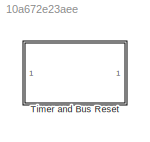
MODEL slx_10a672e23aee
KIND library
CONFIG AbsTol = auto
CONFIG EnableMultiTasking = off
CONFIG FixedStep = auto
CONFIG MaxStep = auto
CONFIG MinStep = auto
CONFIG RelTol = 1e-3
CONFIG SampleTimeConstraint = Unconstrained
CONFIG Solver = VariableStepAuto
CONFIG SolverName = VariableStepAuto
CONFIG StartTime = 0.0
CONFIG StopTime = 10.0
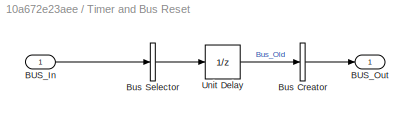
BLOCK [SubSystem] Timer and Bus Reset
  OpenFcn = set_param(gcb(),'LinkStatus','none')\nopen_system(gcb(),'mask')
  Ports = [1, 1]
  RequestExecContextInheritance = off
BLOCK [Inport] Timer and Bus Reset/BUS_In
  IconDisplay = Port number
BLOCK [Outport] Timer and Bus Reset/BUS_Out
  IconDisplay = Port number
BLOCK [BusCreator] Timer and Bus Reset/Bus Creator
  DisplayOption = bar
  InheritFromInputs = on
  Inputs = 1
  Ports = [1, 1]
BLOCK [BusSelector] Timer and Bus Reset/Bus Selector
  OutputAsBus = on
  OutputSignals = signal1
  Ports = [1, 1]
BLOCK [UnitDelay] Timer and Bus Reset/Unit Delay
  InputProcessing = Elements as channels (sample based)
  SampleTime = -1
LINE Timer and Bus Reset/BUS_In:1 -> Timer and Bus Reset/Bus Selector:1
LINE Timer and Bus Reset/Bus Creator:1 -> Timer and Bus Reset/BUS_Out:1
LINE Timer and Bus Reset/Bus Selector:1 -> Timer and Bus Reset/Unit Delay:1
LINE Timer and Bus Reset/Unit Delay:1 -> Timer and Bus Reset/Bus Creator:1
